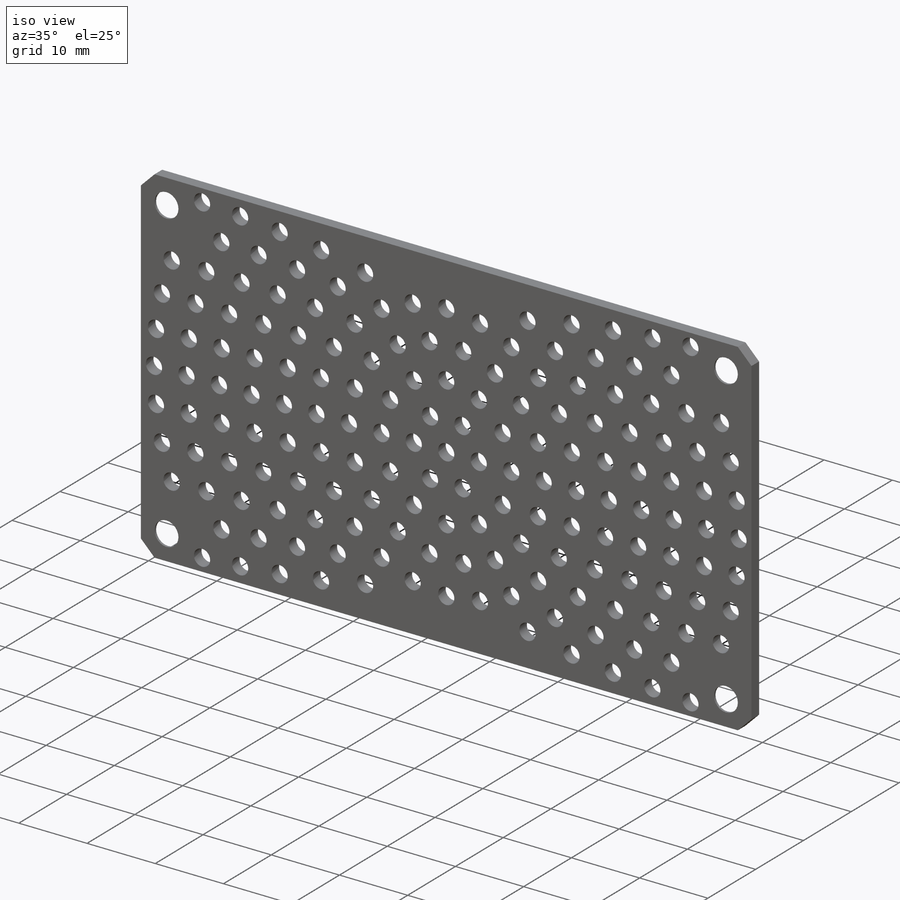
[diagram: iso view]
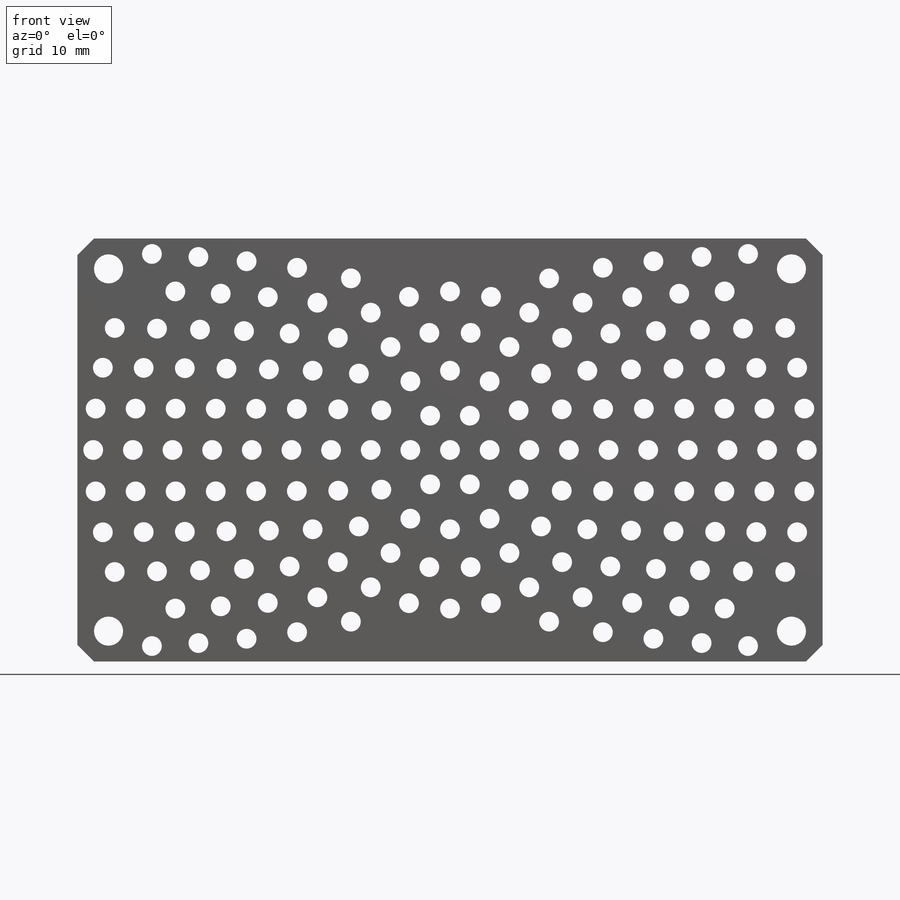
[diagram: front view]
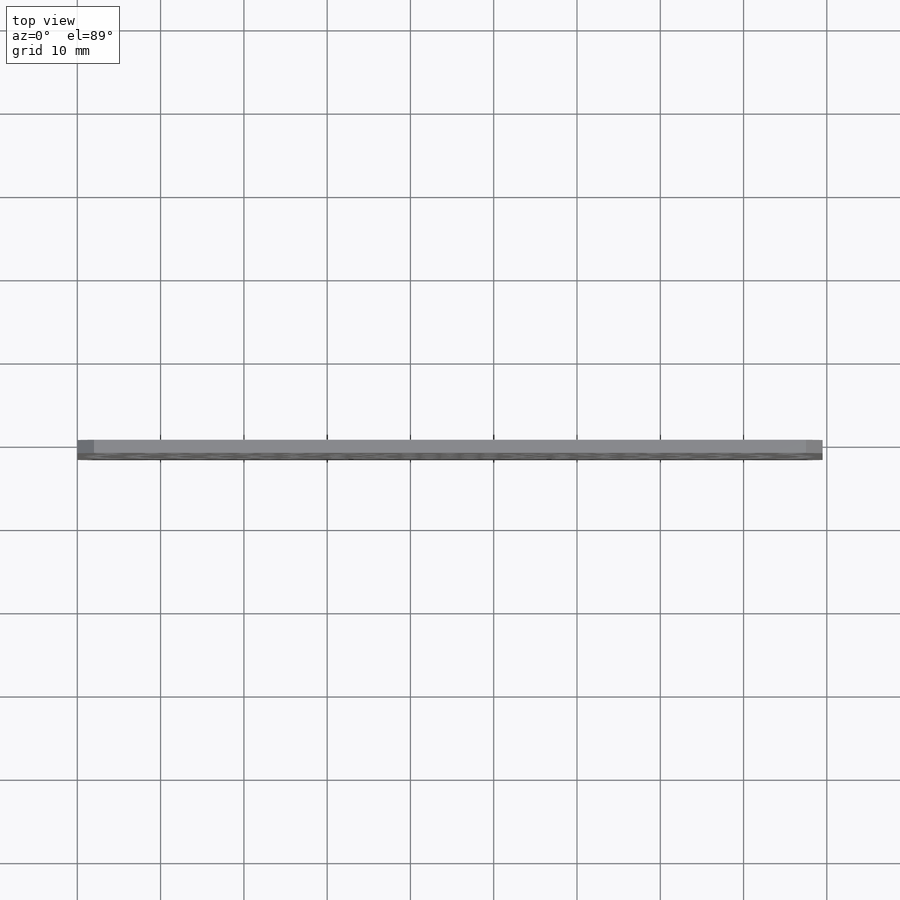
[diagram: top view]
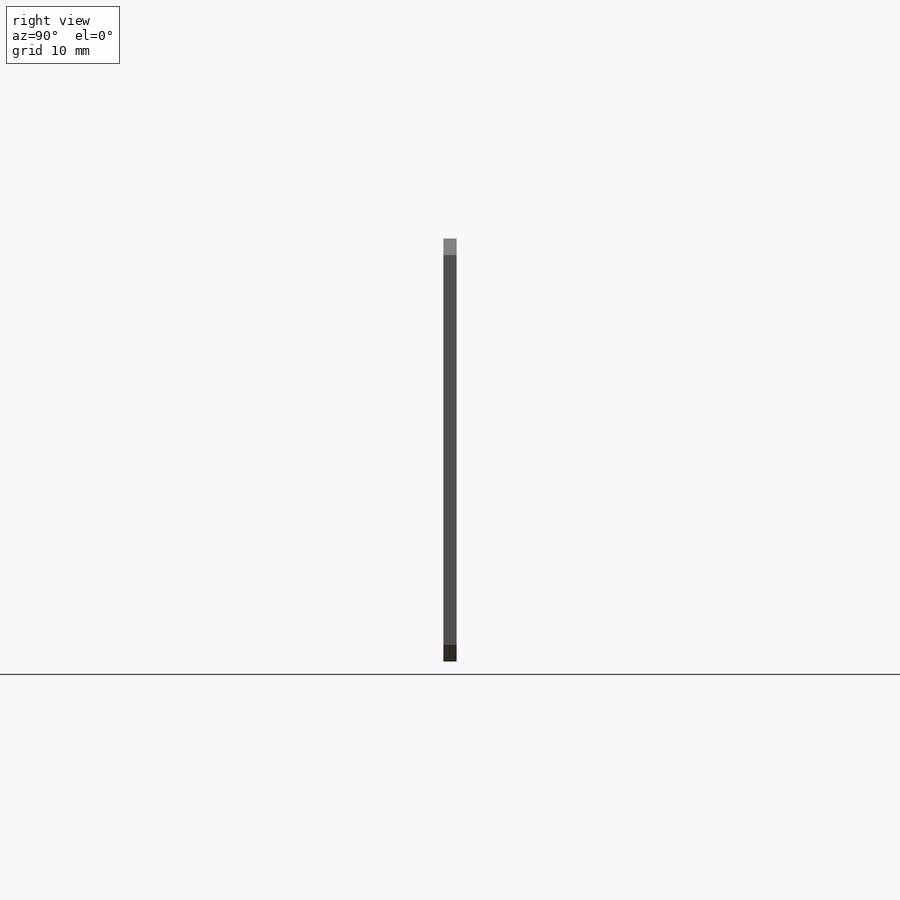
[diagram: right view]
SOLIDWORKS PART (.sldprt)
format: sldprt  version: not decoded by parser v0  size: 683,008 bytes
history: native  units: mm
features: sketch x4, cut_extrude x3, chamfer x2, material x1, extrude x1 (+13 scaffold rows collapsed)
feature tree (24):
  scaffold x13  (default folders/planes/origin — collapsed)
  material  "Material <not specified>"
  sketch  "Sketch1"  dims[D1=89.5mm D2=50.8mm]
  extrude  "Boss-Extrude1"  Depth=1.5875mm
  chamfer  "Chamfer1"  Distance=2mm Angle=45deg
  sketch  "Sketch3"  dims[D1=3.5mm D2=82.0mm D3=43.5mm]
  cut_extrude  "Cut-Extrude2"  [1 undecoded]
  chamfer  "Chamfer2"  Distance=1.27mm Angle=45deg
  sketch  "Sketch4"  dims[D1=~2.38125mm D2=10.0 D3=6.0 D4=12.0 D5=18.0 D6=24.0 D7=30.0 D8=36.0 D9=42.0 D10=48.0]
  cut_extrude  "Cut-Extrude3"  [1 undecoded]
  sketch  "Sketch5"  dims[D1=1.5875mm D2=20.0mm D3=5.0mm]
  cut_extrude  "Cut-Extrude4"  [1 undecoded]
decode coverage: 7 of 10 modeling features carry decoded parameters
note: ~ marks probable driven/reference dimensions
note: 3 parameter values undecoded
summary: no parameter record found for 3 features
note: suppression state not decoded; provenance and decode notes live in map.json
